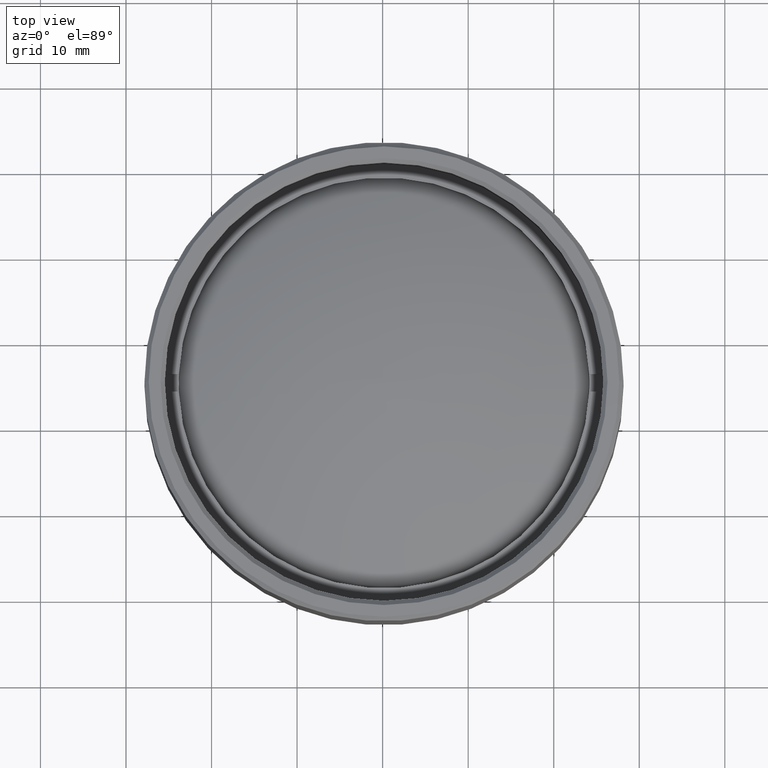
[diagram: clean part render]
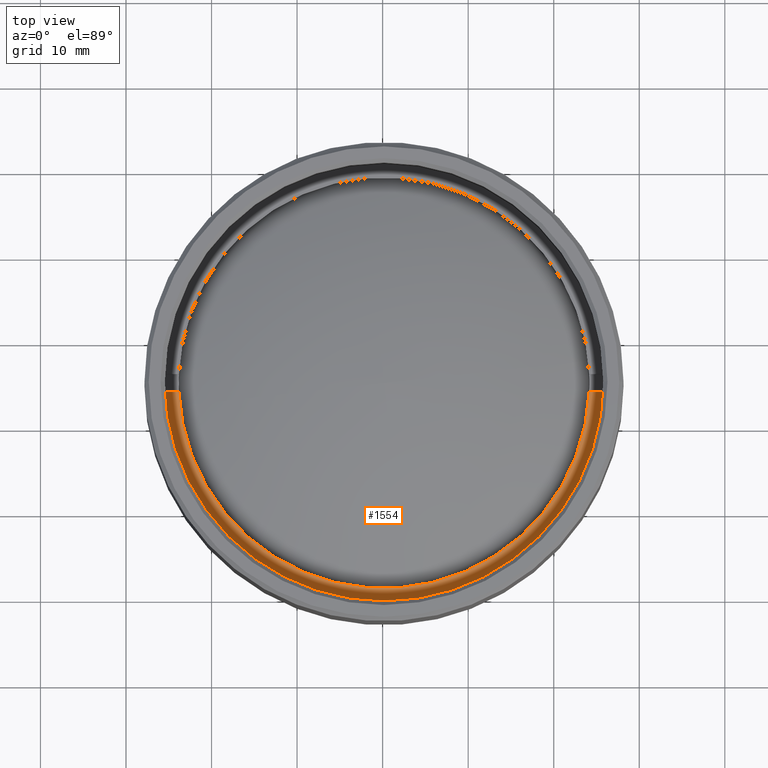
[diagram: same view with one face highlighted and labeled with its STEP entity id]
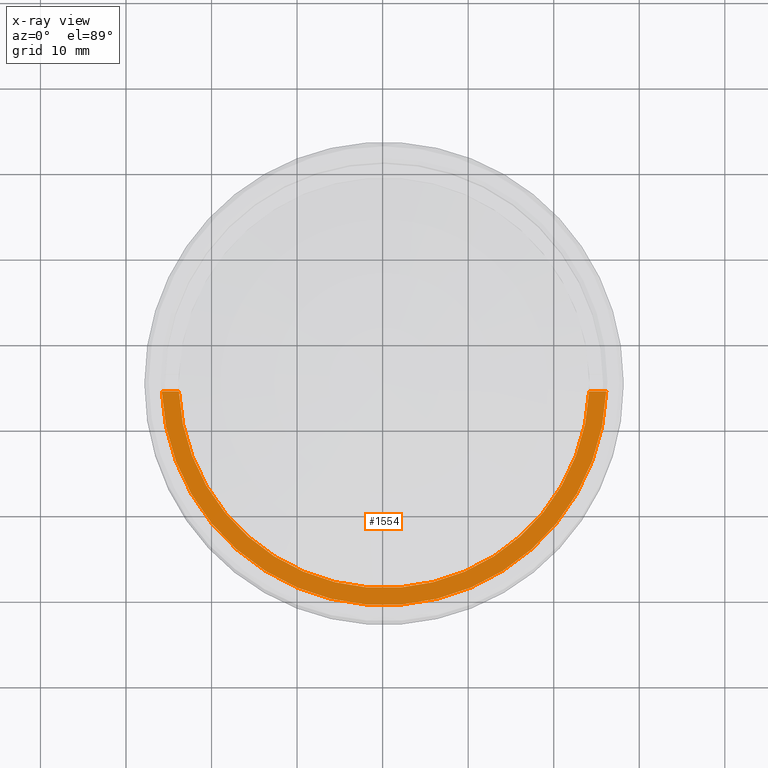
[diagram: x-ray of the same camera — body ghosted, the highlighted face saturated]
A machine part, top view. The second image highlights one B-rep face of the part: STEP entity #1554.
The next image is the same camera in x-ray: the body ghosted, the highlighted face saturated — about 0% of this face is hidden behind the body in this view.
In plain terms, the highlighted planar face has unit normal (0, 0, 1).
Its self-contained STEP definition (entity closure, byte-faithful):
#138 = CARTESIAN_POINT ( 'NONE',  ( -25.98076211353315301, -1.000000000000000000, 2.500000000000000000 ) ) ;
#188 = EDGE_LOOP ( 'NONE', ( #342, #580, #1551, #1038 ) ) ;
#261 = DIRECTION ( 'NONE',  ( 0.000000000000000000, 0.000000000000000000, 1.000000000000000000 ) ) ;
#334 = CARTESIAN_POINT ( 'NONE',  ( 0.000000000000000000, 0.000000000000000000, 2.500000000000000000 ) ) ;
#342 = ORIENTED_EDGE ( 'NONE', *, *, #1218, .F. ) ;
#385 = PLANE ( 'NONE',  #643 ) ;
#395 = VERTEX_POINT ( 'NONE', #571 ) ;
#396 = CARTESIAN_POINT ( 'NONE',  ( 0.000000000000000000, 0.000000000000000000, 2.500000000000000000 ) ) ;
#501 = DIRECTION ( 'NONE',  ( 1.000000000000000000, 0.000000000000000000, 0.000000000000000000 ) ) ;
#543 = DIRECTION ( 'NONE',  ( 1.000000000000000000, 0.000000000000000000, -0.000000000000000000 ) ) ;
#571 = CARTESIAN_POINT ( 'NONE',  ( -23.97915761656360445, -1.000000000000000000, 2.500000000000000000 ) ) ;
#580 = ORIENTED_EDGE ( 'NONE', *, *, #676, .T. ) ;
#609 = CARTESIAN_POINT ( 'NONE',  ( 0.000000000000000000, 0.000000000000000000, 2.500000000000000000 ) ) ;
#639 = DIRECTION ( 'NONE',  ( 0.000000000000000000, 0.000000000000000000, 1.000000000000000000 ) ) ;
#643 = AXIS2_PLACEMENT_3D ( 'NONE', #396, #667, #543 ) ;
#667 = DIRECTION ( 'NONE',  ( 0.000000000000000000, 0.000000000000000000, 1.000000000000000000 ) ) ;
#676 = EDGE_CURVE ( 'NONE', #887, #1046, #1531, .T. ) ;
#718 = EDGE_CURVE ( 'NONE', #395, #1561, #1199, .T. ) ;
#855 = CARTESIAN_POINT ( 'NONE',  ( -30.62185530834360492, -1.000000000000000000, 2.500000000000000000 ) ) ;
#887 = VERTEX_POINT ( 'NONE', #138 ) ;
#964 = DIRECTION ( 'NONE',  ( 1.000000000000000000, 0.000000000000000000, 0.000000000000000000 ) ) ;
#969 = VECTOR ( 'NONE', #964, 1000.000000000000000 ) ;
#988 = LINE ( 'NONE', #855, #969 ) ;
#1032 = CARTESIAN_POINT ( 'NONE',  ( 25.98076211353315301, -1.000000000000000000, 2.500000000000000000 ) ) ;
#1038 = ORIENTED_EDGE ( 'NONE', *, *, #718, .F. ) ;
#1045 = FACE_OUTER_BOUND ( 'NONE', #188, .T. ) ;
#1046 = VERTEX_POINT ( 'NONE', #1032 ) ;
#1128 = CARTESIAN_POINT ( 'NONE',  ( -30.62185530834360492, -1.000000000000000000, 2.500000000000000000 ) ) ;
#1199 = CIRCLE ( 'NONE', #1482, 24.00000000000000355 ) ;
#1202 = CARTESIAN_POINT ( 'NONE',  ( 23.97915761656360445, -1.000000000000000000, 2.500000000000000000 ) ) ;
#1218 = EDGE_CURVE ( 'NONE', #887, #395, #988, .T. ) ;
#1281 = AXIS2_PLACEMENT_3D ( 'NONE', #334, #639, #501 ) ;
#1354 = VECTOR ( 'NONE', #1535, 1000.000000000000000 ) ;
#1482 = AXIS2_PLACEMENT_3D ( 'NONE', #609, #261, #1689 ) ;
#1531 = CIRCLE ( 'NONE', #1281, 25.99999999999999645 ) ;
#1535 = DIRECTION ( 'NONE',  ( 1.000000000000000000, 0.000000000000000000, 0.000000000000000000 ) ) ;
#1548 = LINE ( 'NONE', #1128, #1354 ) ;
#1551 = ORIENTED_EDGE ( 'NONE', *, *, #1730, .F. ) ;
#1554 = ADVANCED_FACE ( 'NONE', ( #1045 ), #385, .T. ) ;
#1561 = VERTEX_POINT ( 'NONE', #1202 ) ;
#1689 = DIRECTION ( 'NONE',  ( 1.000000000000000000, 0.000000000000000000, 0.000000000000000000 ) ) ;
#1730 = EDGE_CURVE ( 'NONE', #1561, #1046, #1548, .T. ) ;